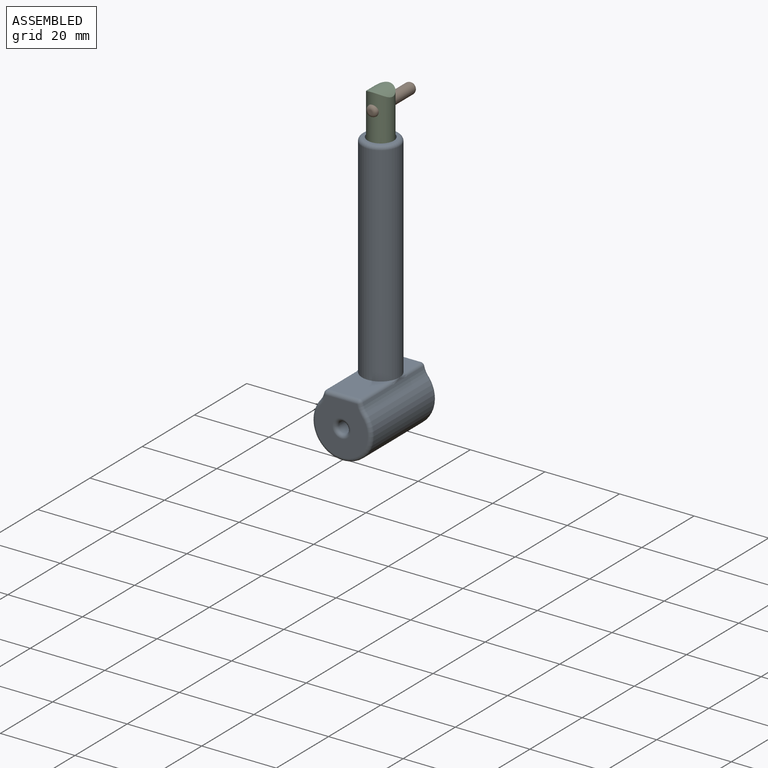
[diagram: assembled view]
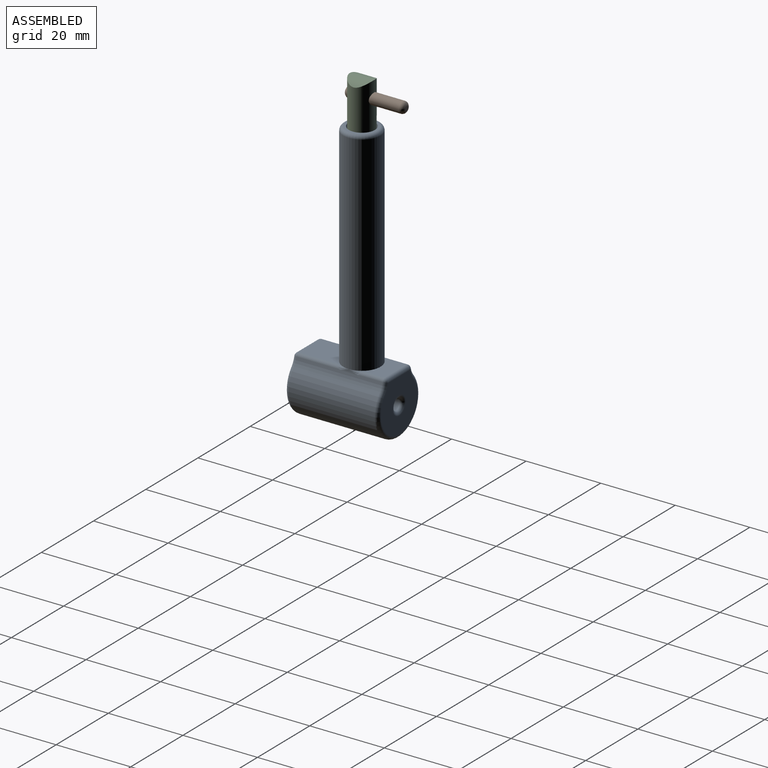
[diagram: assembled view, second angle]
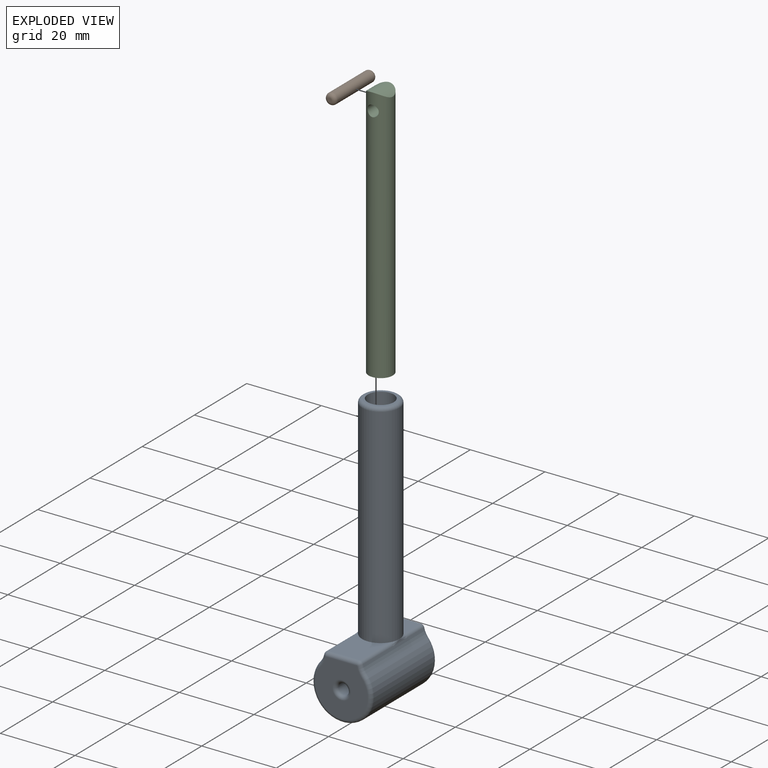
[diagram: exploded view]
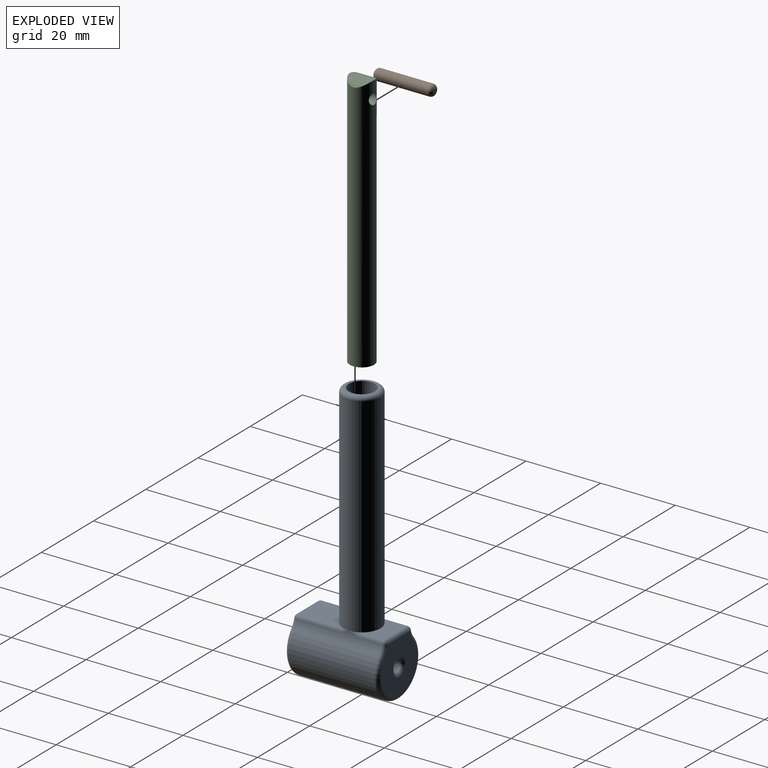
[diagram: exploded view, second angle]
ASSEMBLY  parts=3 mates=2
PART A: 35 faces, bbox 17.3x25x73.7 mm
  f0: cylinder r=5mm len=56mm, axis (0,0,-1), area 1759.3mm2, adj f4,f8,f12,f21,f22,f30,f34
  f1: cylinder r=3.5mm len=57mm, axis (0,0,-1), area 1253.5mm2, adj f2,f3
  f2: plane 8x8mm, normal (0,0,1), area 11.8mm2, adj f1,f34
  f3: plane 7x7mm, normal (0,0,1), area 38.5mm2, adj f1
  f4: plane 8.27x6.19mm, normal (0,0,1), area 38.5mm2, adj f0,f23,f27,f31
  f5: cylinder r=5mm len=23mm, axis (0,-1,0), area 51.4mm2, adj f6,f12,f13,f14,f22,f23,f24
  f6: cylinder r=8mm len=23mm, axis (0,-1,0), area 844mm2, adj f5,f7,f15,f26
  f7: cylinder r=5mm len=23mm, axis (0,-1,0), area 51.4mm2, adj f6,f17,f20,f21,f28,f30,f31
  f8: plane 11.19x8.27mm, normal (0,0,1), area 79.8mm2, adj f0,f14,f18,f20
  f9: cylinder r=1.5mm len=23mm, axis (0,-1,0), area 216.8mm2, adj f32,f33
  f10: plane 14x14mm, normal (0,1,0), area 138.8mm2, adj f24,f26,f27,f28,f33
  f11: plane 14x14mm, normal (0,-1,0), area 138.8mm2, adj f13,f15,f17,f18,f32
  f12: bspline ~3.31x1.21mm, area 1.7mm2, adj f0,f5,f14
  f13: torus R=6mm, axis (0,-1,0), area 3.6mm2, adj f5,f11,f15,f16
  f14: cylinder r=1mm len=11.19mm, axis (0,-1,0), area 15.1mm2, adj f5,f8,f12,f16
  f15: torus R=7mm, axis (0,-1,0), area 55.1mm2, adj f6,f11,f13,f17
  f16: sphere r=1mm, area 1.4mm2, adj f13,f14,f18
  f17: torus R=6mm, axis (0,-1,0), area 3.6mm2, adj f7,f11,f15,f19
  f18: cylinder r=1mm len=8.27mm, axis (-1,0,0), area 13mm2, adj f8,f11,f16,f19
  f19: sphere r=1mm, area 1.4mm2, adj f17,f18,f20
  f20: cylinder r=1mm len=11.19mm, axis (0,-1,0), area 15.1mm2, adj f7,f8,f19,f21
  f21: bspline ~3.31x1.21mm, area 1.7mm2, adj f0,f7,f20
  f22: bspline ~3.31x1.21mm, area 1.7mm2, adj f0,f5,f23
  f23: cylinder r=1mm len=6.19mm, axis (0,-1,0), area 8.4mm2, adj f4,f5,f22,f25
  f24: torus R=6mm, axis (0,-1,0), area 3.6mm2, adj f5,f10,f25,f26
  f25: sphere r=1mm, area 1.4mm2, adj f23,f24,f27
  f26: torus R=7mm, axis (0,-1,0), area 55.1mm2, adj f6,f10,f24,f28
  f27: cylinder r=1mm len=8.27mm, axis (1,0,0), area 13mm2, adj f4,f10,f25,f29
  f28: torus R=6mm, axis (0,-1,0), area 3.6mm2, adj f7,f10,f26,f29
  f29: sphere r=1mm, area 1.4mm2, adj f27,f28,f31
  f30: bspline ~3.31x1.21mm, area 1.7mm2, adj f0,f7,f31
  f31: cylinder r=1mm len=6.19mm, axis (0,-1,0), area 8.4mm2, adj f4,f7,f29,f30
  f32: torus R=2.5mm, axis (0,-1,0), area 18.4mm2, adj f9,f11
  f33: torus R=2.5mm, axis (0,-1,0), area 18.4mm2, adj f9,f10
  f34: torus R=4mm, axis (0,0,1), area 45.8mm2, adj f0,f2
PART B: 5 faces, bbox 3x16x3 mm
  f0: cylinder r=1.5mm len=14mm, axis (0,1,0), area 131.9mm2, adj f3,f4
  f1: plane 1x1mm, normal (0,-1,0), area 0.8mm2, adj f4
  f2: plane 1x1mm, normal (0,1,0), area 0.8mm2, adj f3
  f3: torus R=0.5mm, axis (0,-1,0), area 11.2mm2, adj f0,f2
  f4: torus R=0.5mm, axis (0,-1,0), area 11.2mm2, adj f0,f1
PART C: 4 faces, bbox 6.5x6.5x69 mm
  f0: cylinder r=3.25mm len=69mm, axis (0,0,1), area 1380.9mm2, adj f1,f2,f3
  f1: plane 6.5x6.5mm, normal (0,0,-1), area 33.2mm2, adj f0
  f2: cylinder r=1.5mm len=6.5mm, axis (0,1,0), area 57.9mm2, adj f0
  f3: cylinder r=4.5mm len=6.5mm, axis (0,1,0), area 35.9mm2, adj f0
PLACE A at identity
PLACE B t=(0,12,64.5)mm
PLACE C t=(0,0,60)mm
MATE slider A.f0 <-> C.f0  axis (0,0,-1) through (0,0,0)mm
MATE fastened B.f0 <-> C.f2  axis (0,-1,0) through (0,-3,64.5)mm
